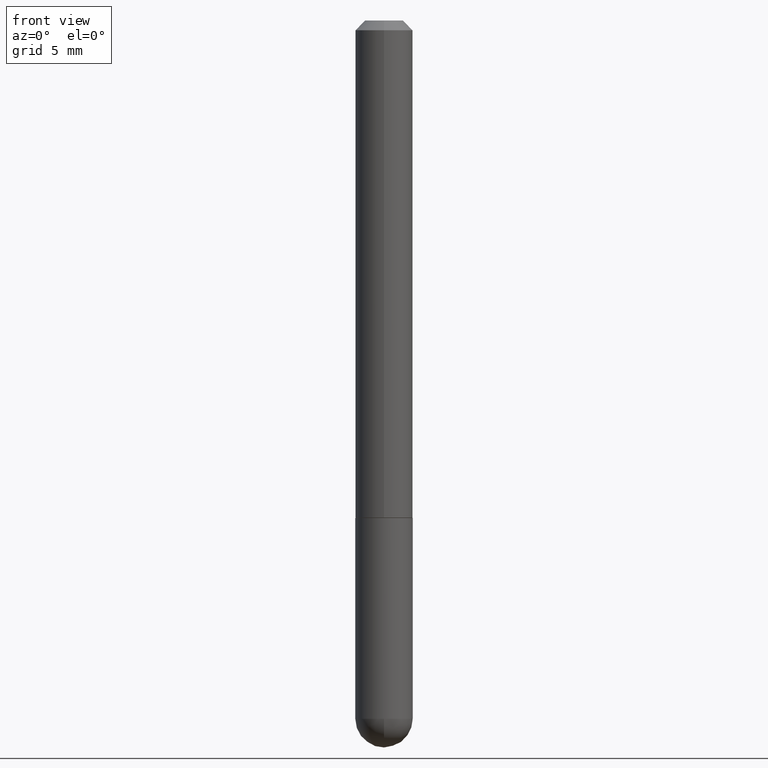
[diagram: clean part render]
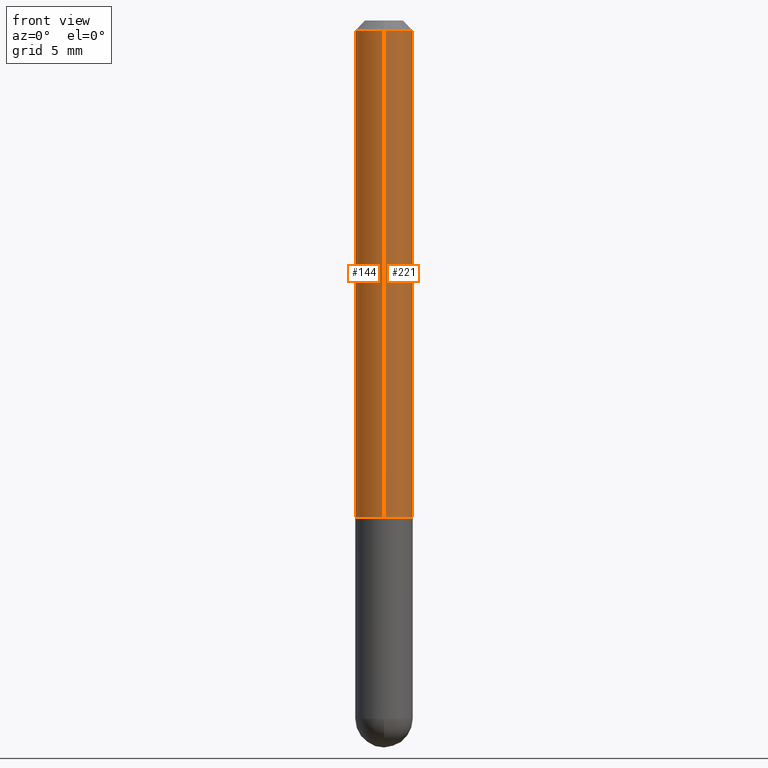
[diagram: same view with one multi-face feature highlighted, each face labeled with its STEP entity id]
A machine part, front view. The highlighted faces form ONE feature: a constant-radius fillet chain: 2 tangent blend faces with common blend radius 1.4999 mm. The faces share edges in the B-rep.
Their STEP definitions:
[1] entity #144 (Cylinder):
#10 = CARTESIAN_POINT ( 'NONE',  ( -4.123439461173497259E-16, -0.05905000000000367594, -1.022699999999999498 ) ) ;
#28 = ORIENTED_EDGE ( 'NONE', *, *, #136, .T. ) ;
#30 = VERTEX_POINT ( 'NONE', #284 ) ;
#31 = EDGE_CURVE ( 'NONE', #213, #30, #220, .T. ) ;
#40 = DIRECTION ( 'NONE',  ( -2.460704223039053504E-29, 3.469663354762261233E-15, 1.000000000000000000 ) ) ;
#47 = AXIS2_PLACEMENT_3D ( 'NONE', #322, #40, #168 ) ;
#63 = DIRECTION ( 'NONE',  ( -2.460704223039053504E-29, 3.469663354762261233E-15, 1.000000000000000000 ) ) ;
#64 = LINE ( 'NONE', #188, #99 ) ;
#91 = EDGE_LOOP ( 'NONE', ( #92, #119, #28, #118 ) ) ;
#92 = ORIENTED_EDGE ( 'NONE', *, *, #97, .F. ) ;
#97 = EDGE_CURVE ( 'NONE', #295, #213, #64, .T. ) ;
#99 = VECTOR ( 'NONE', #310, 39.37007874015748143 ) ;
#118 = ORIENTED_EDGE ( 'NONE', *, *, #31, .F. ) ;
#119 = ORIENTED_EDGE ( 'NONE', *, *, #362, .T. ) ;
#122 = CARTESIAN_POINT ( 'NONE',  ( 0.000000000000000000, 0.000000000000000000, 0.000000000000000000 ) ) ;
#123 = VECTOR ( 'NONE', #273, 39.37007874015748143 ) ;
#124 = DIRECTION ( 'NONE',  ( -6.982962677686265922E-15, -1.000000000000000000, 3.469663354762261233E-15 ) ) ;
#136 = EDGE_CURVE ( 'NONE', #183, #30, #314, .T. ) ;
#144 = ADVANCED_FACE ( 'NONE', ( #248 ), #406, .T. ) ;
#168 = DIRECTION ( 'NONE',  ( -6.982962677686265133E-15, -1.000000000000000000, 2.313165108945179540E-15 ) ) ;
#183 = VERTEX_POINT ( 'NONE', #10 ) ;
#188 = CARTESIAN_POINT ( 'NONE',  ( 4.195754854663395916E-16, 0.05905000000000006771, -2.048836210987117645E-16 ) ) ;
#197 = CARTESIAN_POINT ( 'NONE',  ( 4.195754854663525585E-16, 0.05904999999999657745, -1.022699999999999942 ) ) ;
#213 = VERTEX_POINT ( 'NONE', #361 ) ;
#220 = CIRCLE ( 'NONE', #242, 0.05905000000000001914 ) ;
#242 = AXIS2_PLACEMENT_3D ( 'NONE', #360, #385, #353 ) ;
#248 = FACE_OUTER_BOUND ( 'NONE', #91, .T. ) ;
#256 = CIRCLE ( 'NONE', #47, 0.05905000000000013016 ) ;
#273 = DIRECTION ( 'NONE',  ( -2.460704223039053504E-29, 3.469663354762261233E-15, 1.000000000000000000 ) ) ;
#279 = CARTESIAN_POINT ( 'NONE',  ( -4.123439461173744764E-16, -0.05905000000000006771, 2.048836210987117645E-16 ) ) ;
#284 = CARTESIAN_POINT ( 'NONE',  ( -4.051124067684085231E-16, -0.05905000000000008159, -0.01999999999999986511 ) ) ;
#295 = VERTEX_POINT ( 'NONE', #197 ) ;
#310 = DIRECTION ( 'NONE',  ( -2.460704223039053504E-29, 3.469663354762261233E-15, 1.000000000000000000 ) ) ;
#314 = LINE ( 'NONE', #279, #123 ) ;
#322 = CARTESIAN_POINT ( 'NONE',  ( 2.516562208902038878E-29, -3.548424712915363391E-15, -1.022699999999999720 ) ) ;
#353 = DIRECTION ( 'NONE',  ( -6.982962677686265922E-15, -1.000000000000000000, 3.469747663417776213E-15 ) ) ;
#360 = CARTESIAN_POINT ( 'NONE',  ( 4.921408446078123403E-31, -6.939326709524544899E-17, -0.02000000000000006981 ) ) ;
#361 = CARTESIAN_POINT ( 'NONE',  ( 4.123439461173745750E-16, 0.05904999999999994975, -0.02000000000000027450 ) ) ;
#362 = EDGE_CURVE ( 'NONE', #295, #183, #256, .T. ) ;
#364 = AXIS2_PLACEMENT_3D ( 'NONE', #122, #63, #124 ) ;
#385 = DIRECTION ( 'NONE',  ( -2.460704223039053504E-29, 3.469663354762261233E-15, 1.000000000000000000 ) ) ;
#406 = CYLINDRICAL_SURFACE ( 'NONE', #364, 0.05905000000000006771 ) ;
[2] entity #221 (Cylinder):
#1 = FACE_OUTER_BOUND ( 'NONE', #50, .T. ) ;
#4 = EDGE_CURVE ( 'NONE', #183, #295, #330, .T. ) ;
#9 = AXIS2_PLACEMENT_3D ( 'NONE', #278, #208, #184 ) ;
#10 = CARTESIAN_POINT ( 'NONE',  ( -4.123439461173497259E-16, -0.05905000000000367594, -1.022699999999999498 ) ) ;
#17 = AXIS2_PLACEMENT_3D ( 'NONE', #36, #230, #193 ) ;
#30 = VERTEX_POINT ( 'NONE', #284 ) ;
#35 = DIRECTION ( 'NONE',  ( -2.460704223039053504E-29, 3.469663354762261233E-15, 1.000000000000000000 ) ) ;
#36 = CARTESIAN_POINT ( 'NONE',  ( 0.000000000000000000, 0.000000000000000000, 0.000000000000000000 ) ) ;
#42 = CARTESIAN_POINT ( 'NONE',  ( 4.921408446078123403E-31, -6.939326709524544899E-17, -0.02000000000000006981 ) ) ;
#50 = EDGE_LOOP ( 'NONE', ( #275, #51, #83, #216 ) ) ;
#51 = ORIENTED_EDGE ( 'NONE', *, *, #97, .T. ) ;
#64 = LINE ( 'NONE', #188, #99 ) ;
#83 = ORIENTED_EDGE ( 'NONE', *, *, #178, .F. ) ;
#97 = EDGE_CURVE ( 'NONE', #295, #213, #64, .T. ) ;
#99 = VECTOR ( 'NONE', #310, 39.37007874015748143 ) ;
#110 = AXIS2_PLACEMENT_3D ( 'NONE', #42, #35, #174 ) ;
#123 = VECTOR ( 'NONE', #273, 39.37007874015748143 ) ;
#136 = EDGE_CURVE ( 'NONE', #183, #30, #314, .T. ) ;
#174 = DIRECTION ( 'NONE',  ( -6.982962677686265922E-15, -1.000000000000000000, 3.469747663417776213E-15 ) ) ;
#178 = EDGE_CURVE ( 'NONE', #30, #213, #233, .T. ) ;
#183 = VERTEX_POINT ( 'NONE', #10 ) ;
#184 = DIRECTION ( 'NONE',  ( -6.982962677686265133E-15, -1.000000000000000000, 2.313165108945179540E-15 ) ) ;
#188 = CARTESIAN_POINT ( 'NONE',  ( 4.195754854663395916E-16, 0.05905000000000006771, -2.048836210987117645E-16 ) ) ;
#193 = DIRECTION ( 'NONE',  ( -6.982962677686265922E-15, -1.000000000000000000, 3.469663354762261233E-15 ) ) ;
#197 = CARTESIAN_POINT ( 'NONE',  ( 4.195754854663525585E-16, 0.05904999999999657745, -1.022699999999999942 ) ) ;
#208 = DIRECTION ( 'NONE',  ( -2.460704223039053504E-29, 3.469663354762261233E-15, 1.000000000000000000 ) ) ;
#213 = VERTEX_POINT ( 'NONE', #361 ) ;
#216 = ORIENTED_EDGE ( 'NONE', *, *, #136, .F. ) ;
#221 = ADVANCED_FACE ( 'NONE', ( #1 ), #355, .T. ) ;
#230 = DIRECTION ( 'NONE',  ( -2.460704223039053504E-29, 3.469663354762261233E-15, 1.000000000000000000 ) ) ;
#233 = CIRCLE ( 'NONE', #110, 0.05905000000000001914 ) ;
#273 = DIRECTION ( 'NONE',  ( -2.460704223039053504E-29, 3.469663354762261233E-15, 1.000000000000000000 ) ) ;
#275 = ORIENTED_EDGE ( 'NONE', *, *, #4, .T. ) ;
#278 = CARTESIAN_POINT ( 'NONE',  ( 2.516562208902038878E-29, -3.548424712915363391E-15, -1.022699999999999720 ) ) ;
#279 = CARTESIAN_POINT ( 'NONE',  ( -4.123439461173744764E-16, -0.05905000000000006771, 2.048836210987117645E-16 ) ) ;
#284 = CARTESIAN_POINT ( 'NONE',  ( -4.051124067684085231E-16, -0.05905000000000008159, -0.01999999999999986511 ) ) ;
#295 = VERTEX_POINT ( 'NONE', #197 ) ;
#310 = DIRECTION ( 'NONE',  ( -2.460704223039053504E-29, 3.469663354762261233E-15, 1.000000000000000000 ) ) ;
#314 = LINE ( 'NONE', #279, #123 ) ;
#330 = CIRCLE ( 'NONE', #9, 0.05905000000000013016 ) ;
#355 = CYLINDRICAL_SURFACE ( 'NONE', #17, 0.05905000000000006771 ) ;
#361 = CARTESIAN_POINT ( 'NONE',  ( 4.123439461173745750E-16, 0.05904999999999994975, -0.02000000000000027450 ) ) ;